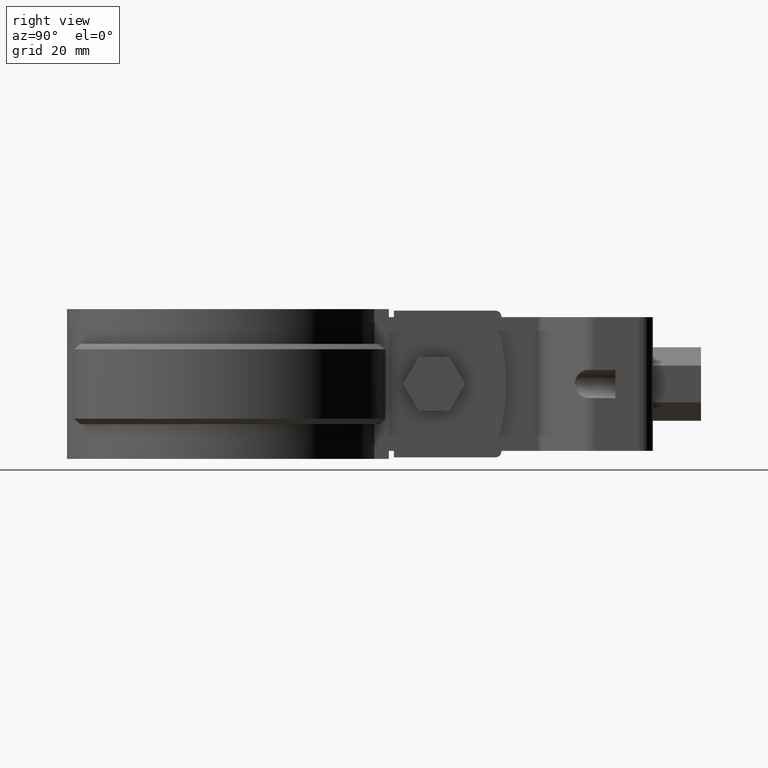
[diagram: clean part render]
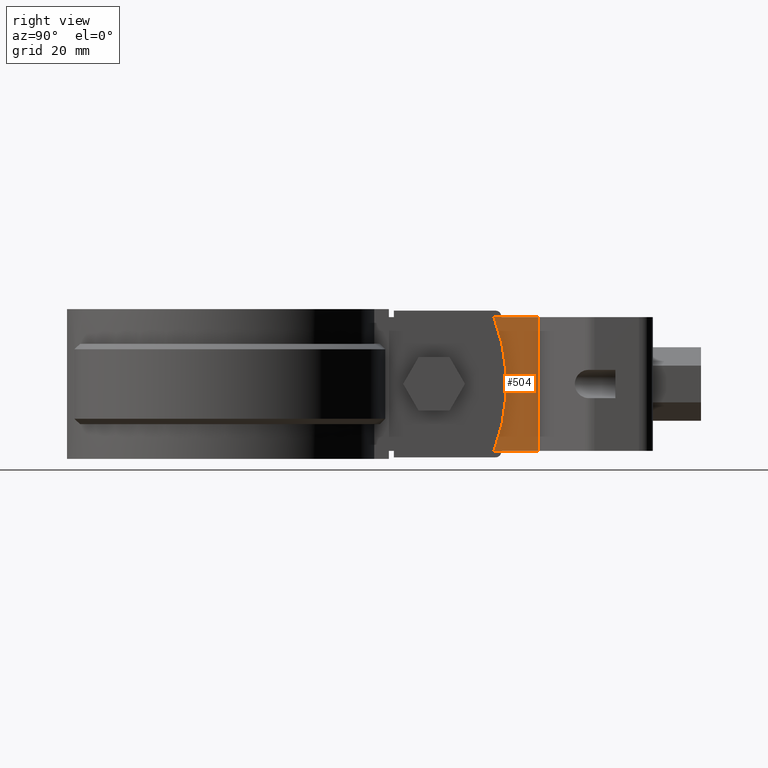
[diagram: same view with one face highlighted and labeled with its STEP entity id]
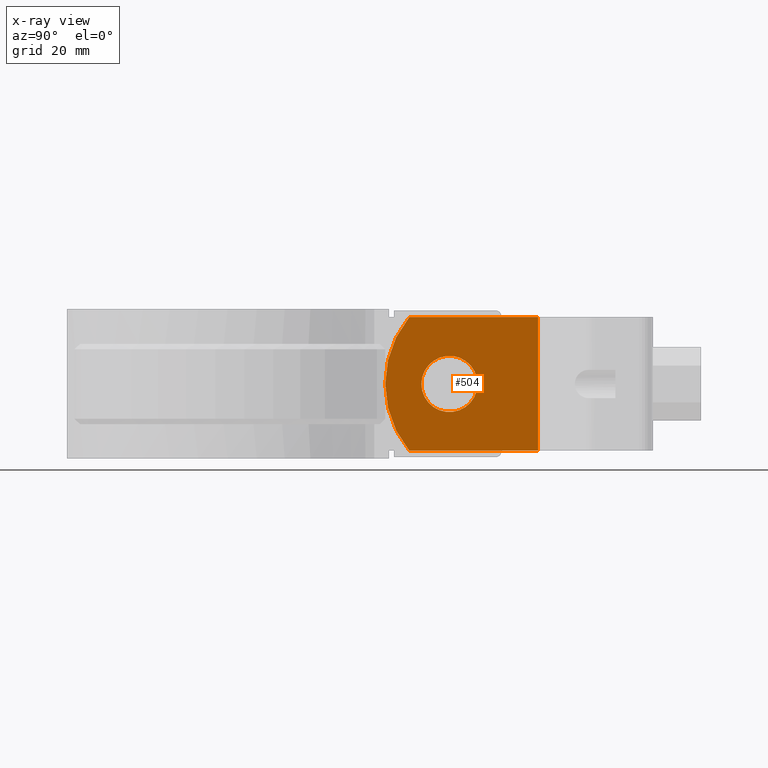
[diagram: x-ray of the same camera — body ghosted, the highlighted face saturated]
A machine part, right view. The second image highlights one B-rep face of the part: STEP entity #504.
The next image is the same camera in x-ray: the body ghosted, the highlighted face saturated — about 0% of this face is hidden behind the body in this view.
In plain terms, the highlighted planar face has unit normal (1, 0, -0).
Its self-contained STEP definition (entity closure, byte-faithful):
#504 = ADVANCED_FACE( '', ( #1002, #1003 ), #1004, .T. );
#1002 = FACE_BOUND( '', #2374, .T. );
#1003 = FACE_OUTER_BOUND( '', #2375, .T. );
#1004 = PLANE( '', #2376 );
#2374 = EDGE_LOOP( '', ( #5267 ) );
#2375 = EDGE_LOOP( '', ( #5268, #5269, #5270, #5271 ) );
#2376 = AXIS2_PLACEMENT_3D( '', #5272, #5273, #5274 );
#5267 = ORIENTED_EDGE( '', *, *, #7408, .F. );
#5268 = ORIENTED_EDGE( '', *, *, #7388, .T. );
#5269 = ORIENTED_EDGE( '', *, *, #7406, .F. );
#5270 = ORIENTED_EDGE( '', *, *, #7409, .F. );
#5271 = ORIENTED_EDGE( '', *, *, #7410, .F. );
#5272 = CARTESIAN_POINT( '', ( 2.99999999936936, 59.4754109155828, -25.0000000608074 ) );
#5273 = DIRECTION( '', ( 1.00000000000000, 3.46797421634620E-012, -2.03759782706166E-012 ) );
#5274 = DIRECTION( '', ( -3.46797421738305E-012, 1.00000000000000, -5.08856068393042E-010 ) );
#7388 = EDGE_CURVE( '', #8643, #8641, #8644, .T. );
#7406 = EDGE_CURVE( '', #8675, #8641, #8678, .T. );
#7408 = EDGE_CURVE( '', #8680, #8680, #8681, .F. );
#7409 = EDGE_CURVE( '', #8682, #8675, #8683, .T. );
#7410 = EDGE_CURVE( '', #8643, #8682, #8684, .F. );
#8641 = VERTEX_POINT( '', #12246 );
#8643 = VERTEX_POINT( '', #12249 );
#8644 = LINE( '', #12250, #12251 );
#8675 = VERTEX_POINT( '', #12291 );
#8678 = CIRCLE( '', #12295, 19.6111110000000 );
#8680 = VERTEX_POINT( '', #12297 );
#8681 = CIRCLE( '', #12298, 5.25000000000002 );
#8682 = VERTEX_POINT( '', #12299 );
#8683 = LINE( '', #12300, #12301 );
#8684 = LINE( '', #12302, #12303 );
#12246 = CARTESIAN_POINT( '', ( 2.99999999950521, 34.9998007928735, -4.24395796283505E-008 ) );
#12249 = CARTESIAN_POINT( '', ( 2.99999999942177, 59.0539471594142, -6.05929889596624E-008 ) );
#12250 = CARTESIAN_POINT( '', ( 2.99999999942031, 59.4754109283042, -6.08074424146565E-008 ) );
#12251 = VECTOR( '', #14175, 1000.00000000000 );
#12291 = CARTESIAN_POINT( '', ( 2.99999999945424, 34.9998007752606, -25.0000000483529 ) );
#12295 = AXIS2_PLACEMENT_3D( '', #14207, #14208, #14209 );
#12297 = CARTESIAN_POINT( '', ( 2.99999999943550, 47.7498007485331, -12.5000000548408 ) );
#12298 = AXIS2_PLACEMENT_3D( '', #14213, #14214, #14215 );
#12299 = CARTESIAN_POINT( '', ( 2.99999999937083, 59.0539471466928, -25.0000000605930 ) );
#12300 = CARTESIAN_POINT( '', ( 2.99999999936936, 59.4754109155828, -25.0000000608074 ) );
#12301 = VECTOR( '', #14216, 1000.00000000000 );
#12302 = CARTESIAN_POINT( '', ( 2.99999999937083, 59.0539471466928, -25.0000000605930 ) );
#12303 = VECTOR( '', #14217, 1000.00000000000 );
#14175 = DIRECTION( '', ( 3.46764115047566E-012, -1.00000000000000, 5.08856068393042E-010 ) );
#14207 = CARTESIAN_POINT( '', ( 2.99999999942731, 50.1109117485331, -12.5000000560422 ) );
#14208 = DIRECTION( '', ( -1.00000000000000, -3.46797421634620E-012, 2.03759782706166E-012 ) );
#14209 = DIRECTION( '', ( -3.46797421738304E-012, 1.00000000000000, -5.08856068393042E-010 ) );
#14213 = CARTESIAN_POINT( '', ( 2.99999999945370, 42.4998007485331, -12.5000000521693 ) );
#14214 = DIRECTION( '', ( -1.00000000000000, -3.46797421634620E-012, 2.03759782706166E-012 ) );
#14215 = DIRECTION( '', ( -3.46797421738305E-012, 1.00000000000000, -5.08856068393042E-010 ) );
#14216 = DIRECTION( '', ( 3.46764115047566E-012, -1.00000000000000, 5.08856068393042E-010 ) );
#14217 = DIRECTION( '', ( 2.03759782529696E-012, 5.08856008656156E-010, 1.00000000000000 ) );